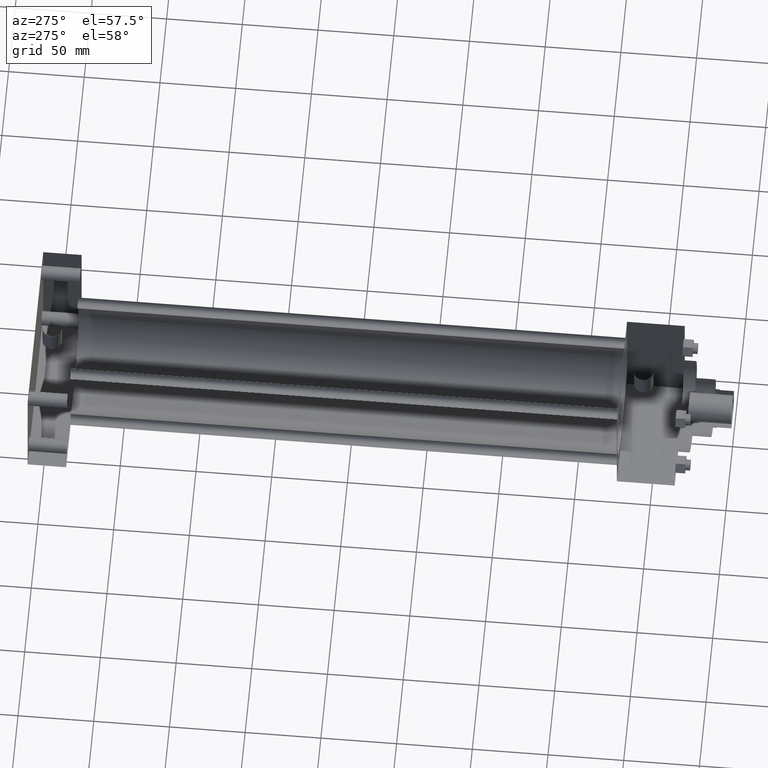
[diagram: clean part render]
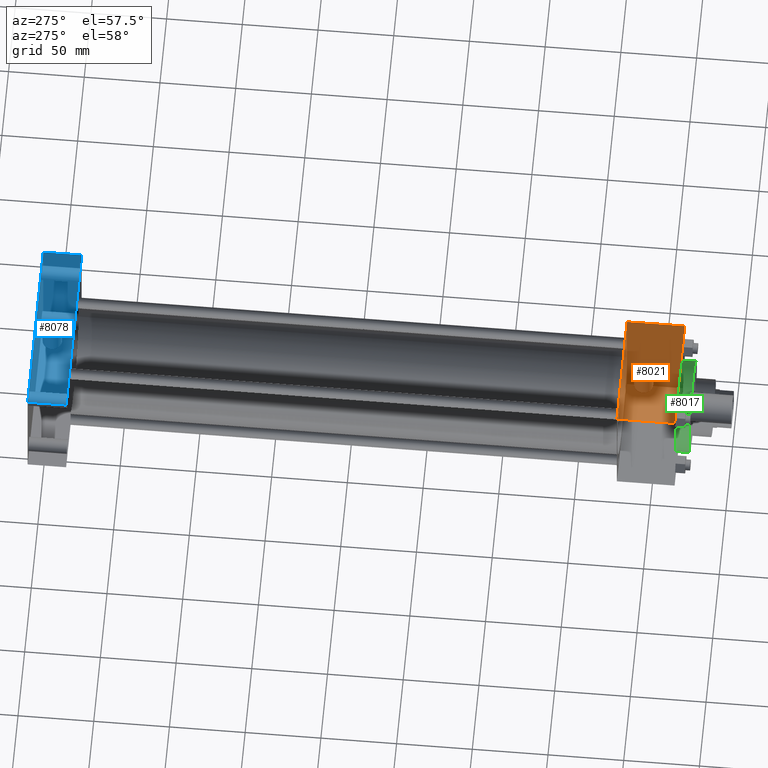
[diagram: same view with three faces highlighted in distinct colors, each labeled with its STEP entity id]
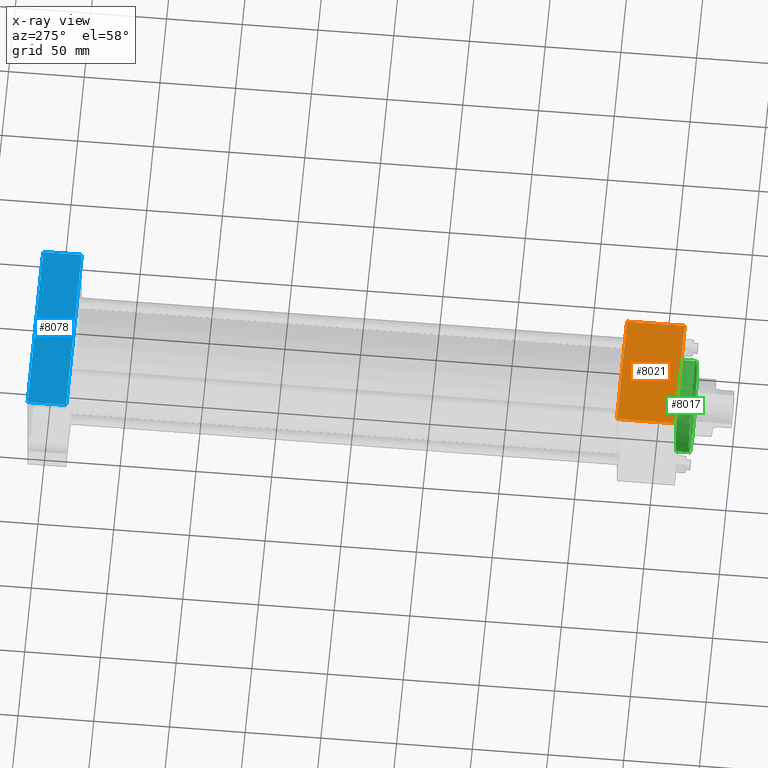
[diagram: x-ray of the same camera — body ghosted, the three highlighted faces saturated]
A machine part, auxiliary view with three faces highlighted in distinct colors.
The next image is the same camera in x-ray (body ghosted, the three faces saturated) — at least one of them is partly hidden behind the body in this view.
Their STEP definitions:

[orange] entity #8021 — the highlighted planar face has unit normal (0, 0, 1).
#529=VERTEX_POINT('',#530);
#530=CARTESIAN_POINT('',(-3.810000000E+001,7.302500000E+001,3.810000000E+001));
#531=EDGE_CURVE('',#536,#529,#532,.T.);
#532=LINE('',#533,#534);
#533=CARTESIAN_POINT('',(3.810000000E+001,7.302500000E+001,3.810000000E+001));
#534=VECTOR('',#535,1.0E+000);
#535=DIRECTION('',(-1.0E+000,0.0E+000,0.0E+000));
#536=VERTEX_POINT('',#537);
#537=CARTESIAN_POINT('',(3.810000000E+001,7.302500000E+001,3.810000000E+001));
#625=FACE_OUTER_BOUND('',#627,.T.);
#626=FACE_BOUND('',#628,.T.);
#627=EDGE_LOOP('',(#629,#630,#631,#632));
#628=EDGE_LOOP('',(#652));
#629=ORIENTED_EDGE('',*,*,#633,.T.);
#630=ORIENTED_EDGE('',*,*,#640,.F.);
#631=ORIENTED_EDGE('',*,*,#647,.F.);
#632=ORIENTED_EDGE('',*,*,#531,.T.);
#633=EDGE_CURVE('',#529,#638,#634,.T.);
#634=LINE('',#635,#636);
#635=CARTESIAN_POINT('',(-3.810000000E+001,7.302500000E+001,3.810000000E+001));
#636=VECTOR('',#637,1.0E+000);
#637=DIRECTION('',(0.0E+000,-1.0E+000,0.0E+000));
#638=VERTEX_POINT('',#639);
#639=CARTESIAN_POINT('',(-3.810000000E+001,3.492500000E+001,3.810000000E+001));
#640=EDGE_CURVE('',#645,#638,#641,.T.);
#641=LINE('',#642,#643);
#642=CARTESIAN_POINT('',(3.810000000E+001,3.492500000E+001,3.810000000E+001));
#643=VECTOR('',#644,1.0E+000);
#644=DIRECTION('',(-1.0E+000,0.0E+000,0.0E+000));
#645=VERTEX_POINT('',#646);
#646=CARTESIAN_POINT('',(3.810000000E+001,3.492500000E+001,3.810000000E+001));
#647=EDGE_CURVE('',#536,#645,#648,.T.);
#648=LINE('',#649,#650);
#649=CARTESIAN_POINT('',(3.810000000E+001,7.302500000E+001,3.810000000E+001));
#650=VECTOR('',#651,1.0E+000);
#651=DIRECTION('',(0.0E+000,-1.0E+000,0.0E+000));
#652=ORIENTED_EDGE('',*,*,#653,.T.);
#653=EDGE_CURVE('',#659,#659,#654,.T.);
#654=CIRCLE('',#655,6.350000000E+000);
#655=AXIS2_PLACEMENT_3D('',#656,#657,#658);
#656=CARTESIAN_POINT('',(0.000000000E+000,5.873750000E+001,3.810000000E+001));
#657=DIRECTION('',(0.0E+000,0.0E+000,-1.0E+000));
#658=DIRECTION('',(1.0E+000,0.0E+000,0.0E+000));
#659=VERTEX_POINT('',#660);
#660=CARTESIAN_POINT('',(6.350000000E+000,5.873750000E+001,3.810000000E+001));
#661=PLANE('',#662);
#662=AXIS2_PLACEMENT_3D('',#663,#664,#665);
#663=CARTESIAN_POINT('',(3.810000000E+001,7.302500000E+001,3.810000000E+001));
#664=DIRECTION('',(0.0E+000,0.0E+000,1.0E+000));
#665=DIRECTION('',(1.0E+000,0.0E+000,0.0E+000));
#8021=ADVANCED_FACE('',(#625,#626),#661,.T.);

[blue] entity #8078 — the highlighted planar face has unit normal (0, 0, 1).
#3491=VERTEX_POINT('',#3492);
#3492=CARTESIAN_POINT('',(5.873750000E+001,4.349750000E+002,3.810000000E+001));
#3493=EDGE_CURVE('',#3491,#3498,#3494,.T.);
#3494=LINE('',#3495,#3496);
#3495=CARTESIAN_POINT('',(5.873750000E+001,4.349750000E+002,3.810000000E+001));
#3496=VECTOR('',#3497,1.0E+000);
#3497=DIRECTION('',(-1.0E+000,0.0E+000,0.0E+000));
#3498=VERTEX_POINT('',#3499);
#3499=CARTESIAN_POINT('',(-5.873750000E+001,4.349750000E+002,3.810000000E+001));
#3680=VERTEX_POINT('',#3682);
#3682=CARTESIAN_POINT('',(-5.873750000E+001,4.603750000E+002,3.810000000E+001));
#3689=EDGE_CURVE('',#3680,#3498,#3690,.T.);
#3690=LINE('',#3691,#3692);
#3691=CARTESIAN_POINT('',(-5.873750000E+001,4.603750000E+002,3.810000000E+001));
#3692=VECTOR('',#3693,1.0E+000);
#3693=DIRECTION('',(0.0E+000,-1.0E+000,0.0E+000));
#3716=EDGE_CURVE('',#3721,#3491,#3717,.T.);
#3717=LINE('',#3718,#3719);
#3718=CARTESIAN_POINT('',(5.873750000E+001,4.603750000E+002,3.810000000E+001));
#3719=VECTOR('',#3720,1.0E+000);
#3720=DIRECTION('',(0.0E+000,-1.0E+000,0.0E+000));
#3721=VERTEX_POINT('',#3722);
#3722=CARTESIAN_POINT('',(5.873750000E+001,4.603750000E+002,3.810000000E+001));
#3776=FACE_OUTER_BOUND('',#3778,.T.);
#3777=FACE_BOUND('',#3779,.T.);
#3778=EDGE_LOOP('',(#3780,#3781,#3782,#3783));
#3779=EDGE_LOOP('',(#3789));
#3780=ORIENTED_EDGE('',*,*,#3689,.T.);
#3781=ORIENTED_EDGE('',*,*,#3493,.F.);
#3782=ORIENTED_EDGE('',*,*,#3716,.F.);
#3783=ORIENTED_EDGE('',*,*,#3784,.T.);
#3784=EDGE_CURVE('',#3721,#3680,#3785,.T.);
#3785=LINE('',#3786,#3787);
#3786=CARTESIAN_POINT('',(5.873750000E+001,4.603750000E+002,3.810000000E+001));
#3787=VECTOR('',#3788,1.0E+000);
#3788=DIRECTION('',(-1.0E+000,0.0E+000,0.0E+000));
#3789=ORIENTED_EDGE('',*,*,#3790,.T.);
#3790=EDGE_CURVE('',#3796,#3796,#3791,.T.);
#3791=CIRCLE('',#3792,6.350000000E+000);
#3792=AXIS2_PLACEMENT_3D('',#3793,#3794,#3795);
#3793=CARTESIAN_POINT('',(0.000000000E+000,4.492625000E+002,3.810000000E+001));
#3794=DIRECTION('',(0.0E+000,0.0E+000,-1.0E+000));
#3795=DIRECTION('',(0.0E+000,1.0E+000,0.0E+000));
#3796=VERTEX_POINT('',#3797);
#3797=CARTESIAN_POINT('',(0.000000000E+000,4.556125000E+002,3.810000000E+001));
#3798=PLANE('',#3799);
#3799=AXIS2_PLACEMENT_3D('',#3800,#3801,#3802);
#3800=CARTESIAN_POINT('',(5.873750000E+001,4.603750000E+002,3.810000000E+001));
#3801=DIRECTION('',(0.0E+000,0.0E+000,1.0E+000));
#3802=DIRECTION('',(1.0E+000,0.0E+000,0.0E+000));
#8078=ADVANCED_FACE('',(#3776,#3777),#3798,.T.);

[green] entity #8017 — the highlighted cylindrical surface (bore or boss wall) has radius 30.1625 mm, axis along (0, -1, 0).
#405=EDGE_CURVE('',#411,#411,#406,.T.);
#406=CIRCLE('',#407,3.016250000E+001);
#407=AXIS2_PLACEMENT_3D('',#408,#409,#410);
#408=CARTESIAN_POINT('',(0.000000000E+000,2.619375000E+001,0.000000000E+000));
#409=DIRECTION('',(0.0E+000,-1.0E+000,0.0E+000));
#410=DIRECTION('',(0.0E+000,0.0E+000,-1.0E+000));
#411=VERTEX_POINT('',#412);
#412=CARTESIAN_POINT('',(0.000000000E+000,2.619375000E+001,-3.016250000E+001));
#446=FACE_OUTER_BOUND('',#448,.T.);
#447=FACE_BOUND('',#449,.T.);
#448=EDGE_LOOP('',(#450));
#449=EDGE_LOOP('',(#459));
#450=ORIENTED_EDGE('',*,*,#451,.F.);
#451=EDGE_CURVE('',#457,#457,#452,.T.);
#452=CIRCLE('',#453,3.016250000E+001);
#453=AXIS2_PLACEMENT_3D('',#454,#455,#456);
#454=CARTESIAN_POINT('',(0.000000000E+000,3.492500000E+001,0.000000000E+000));
#455=DIRECTION('',(0.0E+000,1.0E+000,0.0E+000));
#456=DIRECTION('',(1.0E+000,0.0E+000,0.0E+000));
#457=VERTEX_POINT('',#458);
#458=CARTESIAN_POINT('',(3.016250000E+001,3.492500000E+001,0.000000000E+000));
#459=ORIENTED_EDGE('',*,*,#405,.F.);
#460=CYLINDRICAL_SURFACE('',#461,3.016250000E+001);
#461=AXIS2_PLACEMENT_3D('',#462,#463,#464);
#462=CARTESIAN_POINT('',(0.000000000E+000,3.492500000E+001,0.000000000E+000));
#463=DIRECTION('',(0.0E+000,-1.0E+000,0.0E+000));
#464=DIRECTION('',(0.0E+000,0.0E+000,-1.0E+000));
#8017=ADVANCED_FACE('',(#446,#447),#460,.T.);